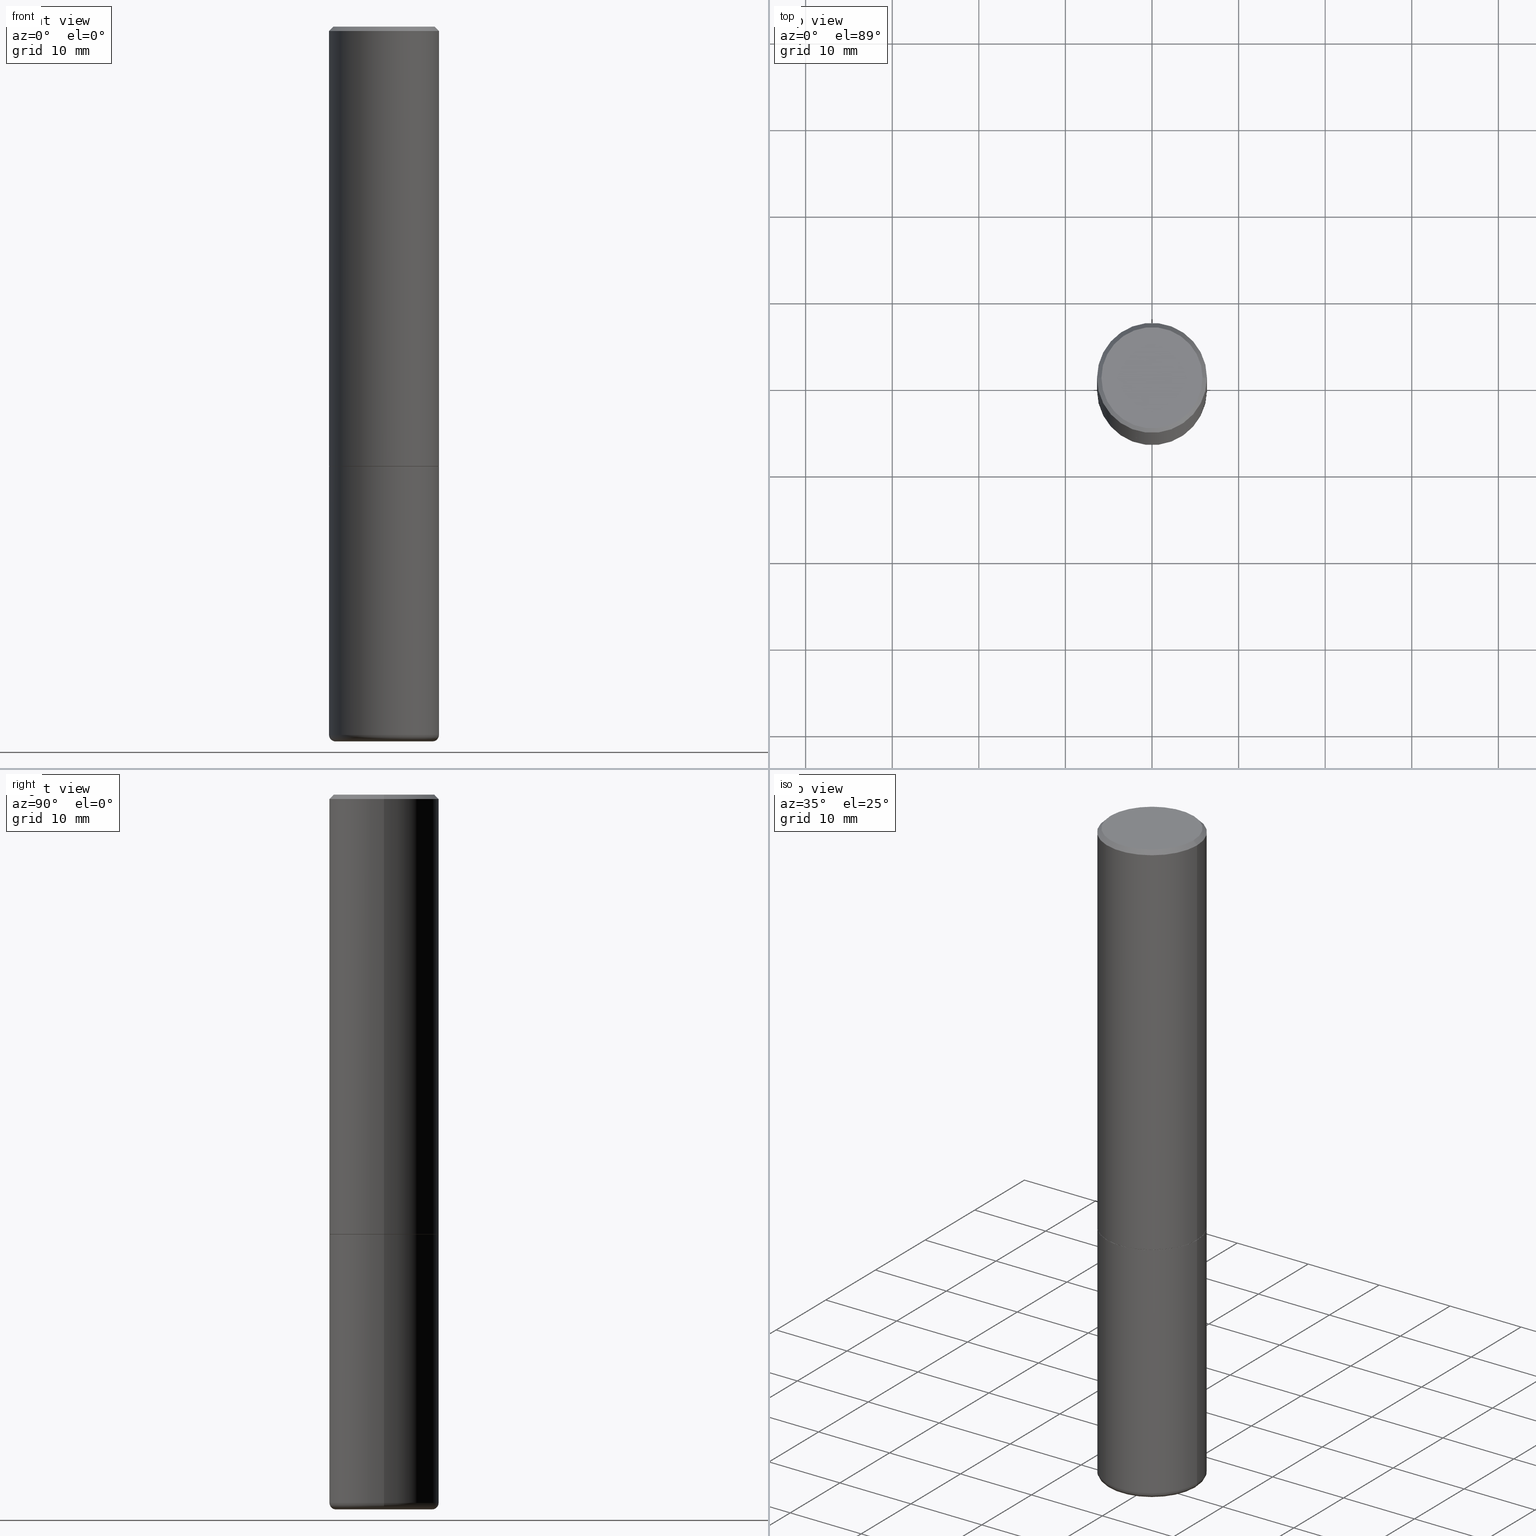
[diagram: canonical four-view strip — front | top / right | iso, engineering-drawing reading convention]
A machine part, canonical four-view strip (front | top / right | iso — engineering-drawing reading convention). The complete STEP part file that produces these views, byte-faithful:
ISO-10303-21;
HEADER;
FILE_DESCRIPTION (( 'STEP AP203' ),
    '1' );
FILE_NAME ('34779.STEP',
    '2022-11-02T20:16:27',
    ( '' ),
    ( '' ),
    'SwSTEP 2.0',
    'SolidWorks 2022',
    '' );
FILE_SCHEMA (( 'CONFIG_CONTROL_DESIGN' ));
ENDSEC;

DATA;
#1 = DIRECTION ( 'NONE',  ( -2.445468806185136597E-29, 3.491481338843145583E-15, 1.000000000000000000 ) ) ;
#2 = ORIENTED_EDGE ( 'NONE', *, *, #148, .T. ) ;
#3 = CARTESIAN_POINT ( 'NONE',  ( -0.2489999999999996660, -5.208412811295422462E-15, -2.000000000000000000 ) ) ;
#4 = DIRECTION ( 'NONE',  ( 0.000000000000000000, 0.000000000000000000, 1.000000000000000000 ) ) ;
#5 = AXIS2_PLACEMENT_3D ( 'NONE', #346, #4, #358 ) ;
#6 = ORIENTED_EDGE ( 'NONE', *, *, #31, .T. ) ;
#7 = VERTEX_POINT ( 'NONE', #160 ) ;
#8 = CARTESIAN_POINT ( 'NONE',  ( 4.890937612370273194E-29, -6.982962677686291165E-15, -2.000000000000000000 ) ) ;
#9 = CARTESIAN_POINT ( 'NONE',  ( 7.929934496680489280E-29, -1.132408133894856808E-14, -3.243025033220710451 ) ) ;
#10 = PRODUCT_RELATED_PRODUCT_CATEGORY ( 'detail', '', ( #156 ) ) ;
#11 = CARTESIAN_POINT ( 'NONE',  ( 0.2197382039350491423, -1.285482785937054132E-14, -3.250000000000000000 ) ) ;
#12 = ORIENTED_EDGE ( 'NONE', *, *, #326, .T. ) ;
#13 = AXIS2_PLACEMENT_3D ( 'NONE', #21, #403, #291 ) ;
#14 = AXIS2_PLACEMENT_3D ( 'NONE', #8, #166, #164 ) ;
#15 = CC_DESIGN_PERSON_AND_ORGANIZATION_ASSIGNMENT ( #400, #60, ( #80 ) ) ;
#16 = DATE_AND_TIME ( #288, #308 ) ;
#17 = DIRECTION ( 'NONE',  ( 2.445468806185136597E-29, -3.491481338843145583E-15, -1.000000000000000000 ) ) ;
#18 = DATE_AND_TIME ( #281, #94 ) ;
#19 = ADVANCED_FACE ( 'NONE', ( #201 ), #317, .F. ) ;
#20 = CARTESIAN_POINT ( 'NONE',  ( -0.2499999999999998612, 1.776356839400249479E-15, -1.229733772563725745E-29 ) ) ;
#21 = CARTESIAN_POINT ( 'NONE',  ( 7.947204554791619182E-29, -1.134650187679537143E-14, -3.249767298070359800 ) ) ;
#22 = AXIS2_PLACEMENT_3D ( 'NONE', #103, #17, #319 ) ;
#23 = CARTESIAN_POINT ( 'NONE',  ( 1.606081415867835940E-15, 0.2299999999999992606, -8.009064516888707148E-16 ) ) ;
#24 = CARTESIAN_POINT ( 'NONE',  ( 4.890937612370273194E-29, -6.982962677686291165E-15, -2.000000000000000000 ) ) ;
#25 = AXIS2_PLACEMENT_3D ( 'NONE', #117, #313, #468 ) ;
#26 = LOCAL_TIME ( 16, 16, 27.00000000000000000, #318 ) ;
#27 = ADVANCED_FACE ( 'NONE', ( #127 ), #51, .F. ) ;
#28 = CARTESIAN_POINT ( 'NONE',  ( 0.2489999999999996660, -8.721720384430167884E-15, -2.000000000000000000 ) ) ;
#29 = LINE ( 'NONE', #142, #459 ) ;
#30 = ORIENTED_EDGE ( 'NONE', *, *, #315, .F. ) ;
#31 = EDGE_CURVE ( 'NONE', #258, #380, #90, .T. ) ;
#32 = PLANE ( 'NONE',  #307 ) ;
#33 = ORIENTED_EDGE ( 'NONE', *, *, #242, .F. ) ;
#34 = AXIS2_PLACEMENT_3D ( 'NONE', #314, #88, #353 ) ;
#35 = VECTOR ( 'NONE', #235, 39.37007874015748854 ) ;
#36 = FACE_OUTER_BOUND ( 'NONE', #240, .T. ) ;
#37 = CARTESIAN_POINT ( 'NONE',  ( 0.000000000000000000, 0.000000000000000000, 0.000000000000000000 ) ) ;
#38 = CC_DESIGN_PERSON_AND_ORGANIZATION_ASSIGNMENT ( #56, #99, ( #405 ) ) ;
#39 = CARTESIAN_POINT ( 'NONE',  ( 0.2499999999999994171, -1.784954126219742244E-15, -0.02000000000000013226 ) ) ;
#40 = VERTEX_POINT ( 'NONE', #391 ) ;
#41 = CYLINDRICAL_SURFACE ( 'NONE', #102, 0.2499999999999998612 ) ;
#42 = AXIS2_PLACEMENT_3D ( 'NONE', #304, #375, #371 ) ;
#43 = EDGE_LOOP ( 'NONE', ( #85, #395, #199, #33 ) ) ;
#44 = DIRECTION ( 'NONE',  ( -0.9993908270190957621, 6.856857904024556470E-15, -0.03489949670250108021 ) ) ;
#45 = VERTEX_POINT ( 'NONE', #9 ) ;
#46 = DIRECTION ( 'NONE',  ( -2.445468806185136597E-29, 3.491481338843145583E-15, 1.000000000000000000 ) ) ;
#47 = ADVANCED_FACE ( 'NONE', ( #165 ), #203, .T. ) ;
#48 = EDGE_LOOP ( 'NONE', ( #457, #79 ) ) ;
#49 = ADVANCED_FACE ( 'NONE', ( #248 ), #382, .F. ) ;
#50 = DATE_AND_TIME ( #247, #26 ) ;
#51 = CONICAL_SURFACE ( 'NONE', #34, 0.1930732039350491758, 1.535889741755009918 ) ;
#52 = DIRECTION ( 'NONE',  ( 7.105427357601001859E-15, 1.000000000000000000, -3.491481338843145583E-15 ) ) ;
#53 = EDGE_CURVE ( 'NONE', #197, #418, #139, .T. ) ;
#54 = CARTESIAN_POINT ( 'NONE',  ( 0.2200000000000002232, -1.277882568851323406E-14, -3.220001142308074993 ) ) ;
#55 = EDGE_CURVE ( 'NONE', #306, #380, #432, .T. ) ;
#56 = PERSON_AND_ORGANIZATION ( #168, #125 ) ;
#57 = CARTESIAN_POINT ( 'NONE',  ( 0.2197382039350491423, -1.288173802818048494E-14, -3.250000000000000000 ) ) ;
#58 = COORDINATED_UNIVERSAL_TIME_OFFSET ( 5, 0, .BEHIND. ) ;
#59 = DIRECTION ( 'NONE',  ( 2.438088387897960049E-29, -3.491481338843145188E-15, -1.000000000000000000 ) ) ;
#60 = PERSON_AND_ORGANIZATION_ROLE ( 'creator' ) ;
#61 = DIRECTION ( 'NONE',  ( 0.9993908270190957621, -6.978169709227541488E-15, -0.03489949670250108021 ) ) ;
#62 = CARTESIAN_POINT ( 'NONE',  ( 7.947204554791619182E-29, -1.134650187679537143E-14, -3.249767298070359800 ) ) ;
#63 = APPROVAL ( #366, 'UNSPECIFIED' ) ;
#64 = DIRECTION ( 'NONE',  ( -0.7071067811865232589, 7.493145998870265808E-15, 0.7071067811865715536 ) ) ;
#65 = EDGE_LOOP ( 'NONE', ( #230, #265, #428, #123 ) ) ;
#66 = CLOSED_SHELL ( 'NONE', ( #422, #268, #47, #419, #399, #329, #279, #119 ) ) ;
#67 = CIRCLE ( 'NONE', #157, 0.2499999999999994171 ) ;
#68 = AXIS2_PLACEMENT_3D ( 'NONE', #37, #274, #122 ) ;
#69 = CARTESIAN_POINT ( 'NONE',  ( 4.890937612370273194E-29, -6.982962677686291165E-15, -2.000000000000000000 ) ) ;
#70 = ORIENTED_EDGE ( 'NONE', *, *, #137, .T. ) ;
#71 = DIRECTION ( 'NONE',  ( -2.445468806185136597E-29, 3.491481338843145583E-15, 1.000000000000000000 ) ) ;
#72 = ORIENTED_EDGE ( 'NONE', *, *, #455, .T. ) ;
#73 = CYLINDRICAL_SURFACE ( 'NONE', #91, 0.2499999999999995282 ) ;
#74 = VERTEX_POINT ( 'NONE', #57 ) ;
#75 = VECTOR ( 'NONE', #321, 39.37007874015748143 ) ;
#76 = CIRCLE ( 'NONE', #14, 0.2499999999999996669 ) ;
#77 = CARTESIAN_POINT ( 'NONE',  ( -0.2489999999999996660, -5.213711265643644864E-15, -2.000000000000000000 ) ) ;
#78 = ORIENTED_EDGE ( 'NONE', *, *, #295, .F. ) ;
#79 = ORIENTED_EDGE ( 'NONE', *, *, #92, .T. ) ;
#80 = PRODUCT_DEFINITION ( 'UNKNOWN', '', #417, #162 ) ;
#81 = LINE ( 'NONE', #387, #475 ) ;
#82 = ORIENTED_EDGE ( 'NONE', *, *, #181, .T. ) ;
#83 = LINE ( 'NONE', #11, #35 ) ;
#84 = VECTOR ( 'NONE', #61, 39.37007874015748143 ) ;
#85 = ORIENTED_EDGE ( 'NONE', *, *, #92, .F. ) ;
#86 =( NAMED_UNIT ( * ) SI_UNIT ( $, .STERADIAN. ) SOLID_ANGLE_UNIT ( ) );
#87 = CARTESIAN_POINT ( 'NONE',  ( -0.2200000000000002232, -9.679379880750033900E-15, -3.220001142308074993 ) ) ;
#88 = DIRECTION ( 'NONE',  ( 2.445468806185136597E-29, -3.491481338843145583E-15, -1.000000000000000000 ) ) ;
#89 = APPROVAL_ROLE ( '' ) ;
#90 = CIRCLE ( 'NONE', #316, 0.02999999999999981501 ) ;
#91 = AXIS2_PLACEMENT_3D ( 'NONE', #224, #411, #379 ) ;
#92 = EDGE_CURVE ( 'NONE', #40, #7, #167, .T. ) ;
#93 = DIRECTION ( 'NONE',  ( 1.000000000000000000, -6.982962677686264344E-15, 0.000000000000000000 ) ) ;
#94 = LOCAL_TIME ( 16, 16, 27.00000000000000000, #469 ) ;
#95 = APPROVAL_ROLE ( '' ) ;
#96 = DIRECTION ( 'NONE',  ( -2.445468806185136597E-29, 3.491481338843145583E-15, 1.000000000000000000 ) ) ;
#97 = APPROVAL_DATE_TIME ( #480, #275 ) ;
#98 = DIRECTION ( 'NONE',  ( -2.445468806185136597E-29, 3.491481338843145583E-15, 1.000000000000000000 ) ) ;
#99 = PERSON_AND_ORGANIZATION_ROLE ( 'classification_officer' ) ;
#100 = DIRECTION ( 'NONE',  ( -2.445468806185136597E-29, 3.491481338843145583E-15, 1.000000000000000000 ) ) ;
#101 = AXIS2_PLACEMENT_3D ( 'NONE', #246, #175, #249 ) ;
#102 = AXIS2_PLACEMENT_3D ( 'NONE', #196, #350, #198 ) ;
#103 = CARTESIAN_POINT ( 'NONE',  ( 7.947773620101693940E-29, -1.134731435124022443E-14, -3.250000000000000000 ) ) ;
#104 = ADVANCED_FACE ( 'NONE', ( #473 ), #334, .F. ) ;
#105 = DIRECTION ( 'NONE',  ( -0.7071067811865479058, 2.468850131082261399E-15, -0.7071067811865470176 ) ) ;
#106 = ORIENTED_EDGE ( 'NONE', *, *, #137, .F. ) ;
#107 = FACE_OUTER_BOUND ( 'NONE', #273, .T. ) ;
#108 = ORIENTED_EDGE ( 'NONE', *, *, #345, .F. ) ;
#109 = TOROIDAL_SURFACE ( 'NONE', #116, 0.2200000000000002232, 0.02999999999999980807 ) ;
#110 = CYLINDRICAL_SURFACE ( 'NONE', #68, 0.2499999999999995282 ) ;
#111 = CARTESIAN_POINT ( 'NONE',  ( 4.890937612370304688E-31, -6.982962677686337215E-17, -0.02000000000000013226 ) ) ;
#112 = ORIENTED_EDGE ( 'NONE', *, *, #485, .F. ) ;
#113 = DIRECTION ( 'NONE',  ( 1.000000000000000000, -6.982962677686264344E-15, 0.000000000000000000 ) ) ;
#114 = EDGE_LOOP ( 'NONE', ( #310, #219 ) ) ;
#115 = AXIS2_PLACEMENT_3D ( 'NONE', #23, #59, #364 ) ;
#116 = AXIS2_PLACEMENT_3D ( 'NONE', #487, #71, #182 ) ;
#117 = CARTESIAN_POINT ( 'NONE',  ( 1.745740669421613023E-15, 0.2499999999999927003, -2.000000000000000888 ) ) ;
#118 = EDGE_CURVE ( 'NONE', #306, #121, #211, .T. ) ;
#119 = ADVANCED_FACE ( 'NONE', ( #406 ), #398, .F. ) ;
#120 = CARTESIAN_POINT ( 'NONE',  ( -1.043851414335219820E-46, 1.490343170380447200E-32, 4.268512490100411279E-18 ) ) ;
#121 = VERTEX_POINT ( 'NONE', #477 ) ;
#122 = DIRECTION ( 'NONE',  ( 1.000000000000000000, -6.982962677686266711E-15, 4.876176775795935232E-29 ) ) ;
#123 = ORIENTED_EDGE ( 'NONE', *, *, #236, .F. ) ;
#124 = CARTESIAN_POINT ( 'NONE',  ( 4.888492143564087591E-29, -6.979471196347447369E-15, -1.998999999999999888 ) ) ;
#125 = ORGANIZATION ( 'UNSPECIFIED', 'UNSPECIFIED', '' ) ;
#126 = ORIENTED_EDGE ( 'NONE', *, *, #431, .T. ) ;
#127 = FACE_OUTER_BOUND ( 'NONE', #239, .T. ) ;
#128 = CARTESIAN_POINT ( 'NONE',  ( 4.890937612370273194E-29, -6.982962677686291165E-15, -2.000000000000000000 ) ) ;
#129 = CALENDAR_DATE ( 2022, 2, 11 ) ;
#130 = CIRCLE ( 'NONE', #389, 0.1930732039350491758 ) ;
#131 = CARTESIAN_POINT ( 'NONE',  ( -0.1930732039350491758, -9.998278899655613929E-15, -3.249767298070359800 ) ) ;
#132 = AXIS2_PLACEMENT_3D ( 'NONE', #120, #392, #354 ) ;
#133 = PERSON_AND_ORGANIZATION ( #168, #125 ) ;
#134 = DIRECTION ( 'NONE',  ( 1.000000000000000000, -6.982962677686246200E-15, 0.000000000000000000 ) ) ;
#135 = DIRECTION ( 'NONE',  ( -6.982962677686266711E-15, -1.000000000000000000, 3.491481338843145583E-15 ) ) ;
#136 = PERSON_AND_ORGANIZATION_ROLE ( 'design_owner' ) ;
#137 = EDGE_CURVE ( 'NONE', #74, #306, #229, .T. ) ;
#138 = DIRECTION ( 'NONE',  ( 1.000000000000000000, -6.982962677686266711E-15, 0.000000000000000000 ) ) ;
#139 = CIRCLE ( 'NONE', #234, 0.1930732039350491758 ) ;
#140 = AXIS2_PLACEMENT_3D ( 'NONE', #425, #344, #266 ) ;
#141 = CONICAL_SURFACE ( 'NONE', #263, 0.2489999999999996660, 0.7853981633974141952 ) ;
#142 = CARTESIAN_POINT ( 'NONE',  ( -0.2499999999999994171, 1.675911042644699238E-15, -0.02000000000000013226 ) ) ;
#143 = CARTESIAN_POINT ( 'NONE',  ( 7.874412349394905166E-29, -1.124257389942225570E-14, -3.220001142308074993 ) ) ;
#144 = EDGE_LOOP ( 'NONE', ( #298, #6, #454, #106 ) ) ;
#145 = CC_DESIGN_PERSON_AND_ORGANIZATION_ASSIGNMENT ( #472, #478, ( #417 ) ) ;
#146 = DIRECTION ( 'NONE',  ( -2.445468806185136597E-29, 3.491481338843145583E-15, 1.000000000000000000 ) ) ;
#147 = AXIS2_PLACEMENT_3D ( 'NONE', #171, #213, #436 ) ;
#148 = EDGE_CURVE ( 'NONE', #45, #418, #251, .T. ) ;
#149 = CIRCLE ( 'NONE', #482, 0.2499999999999996669 ) ;
#150 = DIRECTION ( 'NONE',  ( 1.000000000000000000, -6.982962677686269077E-15, 0.000000000000000000 ) ) ;
#151 = ORIENTED_EDGE ( 'NONE', *, *, #412, .F. ) ;
#152 = CARTESIAN_POINT ( 'NONE',  ( 7.947773620101693940E-29, -1.134731435124022443E-14, -3.250000000000000000 ) ) ;
#153 = ADVANCED_FACE ( 'NONE', ( #369 ), #209, .T. ) ;
#154 = LINE ( 'NONE', #39, #466 ) ;
#155 = ORIENTED_EDGE ( 'NONE', *, *, #372, .F. ) ;
#156 = PRODUCT ( '34779', '34779', '', ( #363 ) ) ;
#157 = AXIS2_PLACEMENT_3D ( 'NONE', #111, #226, #293 ) ;
#158 = VECTOR ( 'NONE', #420, 39.37007874015748143 ) ;
#159 =( LENGTH_UNIT ( ) NAMED_UNIT ( * ) SI_UNIT ( $, .METRE. ) );
#160 = CARTESIAN_POINT ( 'NONE',  ( -0.2299999999999992606, 1.640996229256267786E-15, 4.268512490089056766E-18 ) ) ;
#161 = LENGTH_MEASURE_WITH_UNIT ( LENGTH_MEASURE( 0.02539999999999999897 ), #159 );
#162 = DESIGN_CONTEXT ( 'detailed design', #445, 'design' ) ;
#163 = ORIENTED_EDGE ( 'NONE', *, *, #192, .T. ) ;
#164 = DIRECTION ( 'NONE',  ( 1.000000000000000000, -6.982962677686268288E-15, 0.000000000000000000 ) ) ;
#165 = FACE_OUTER_BOUND ( 'NONE', #43, .T. ) ;
#166 = DIRECTION ( 'NONE',  ( -2.445468806185136597E-29, 3.491481338843145583E-15, 1.000000000000000000 ) ) ;
#167 = CIRCLE ( 'NONE', #440, 0.2299999999999992606 ) ;
#168 = PERSON ( 'UNSPECIFIED', 'UNSPECIFIED', 'UNSPECIFIED', ('UNSPECIFIED'), ('UNSPECIFIED'), ('UNSPECIFIED') ) ;
#169 = ORIENTED_EDGE ( 'NONE', *, *, #448, .F. ) ;
#170 = SHAPE_DEFINITION_REPRESENTATION ( #489, #241 ) ;
#171 = CARTESIAN_POINT ( 'NONE',  ( 0.000000000000000000, 0.000000000000000000, 0.000000000000000000 ) ) ;
#172 = CC_DESIGN_PERSON_AND_ORGANIZATION_ASSIGNMENT ( #284, #136, ( #156 ) ) ;
#173 = CARTESIAN_POINT ( 'NONE',  ( -1.043851414335219820E-46, 1.490343170380447200E-32, 4.268512490100411279E-18 ) ) ;
#174 = VECTOR ( 'NONE', #64, 39.37007874015748854 ) ;
#175 = DIRECTION ( 'NONE',  ( -2.445468806185136597E-29, 3.491481338843145583E-15, 1.000000000000000000 ) ) ;
#176 = DIRECTION ( 'NONE',  ( -1.000000000000000000, 6.982962677686266711E-15, 0.000000000000000000 ) ) ;
#177 = DIRECTION ( 'NONE',  ( -2.445468806185136597E-29, 3.491481338843145583E-15, 1.000000000000000000 ) ) ;
#178 = DIRECTION ( 'NONE',  ( 1.000000000000000000, -6.982962677686265133E-15, 0.000000000000000000 ) ) ;
#179 = AXIS2_PLACEMENT_3D ( 'NONE', #434, #96, #185 ) ;
#180 =( GEOMETRIC_REPRESENTATION_CONTEXT ( 3 ) GLOBAL_UNCERTAINTY_ASSIGNED_CONTEXT ( ( #394 ) ) GLOBAL_UNIT_ASSIGNED_CONTEXT ( ( #312, #272, #86 ) ) REPRESENTATION_CONTEXT ( 'NONE', 'WORKASPACE' ) );
#181 = EDGE_CURVE ( 'NONE', #339, #421, #262, .T. ) ;
#182 = DIRECTION ( 'NONE',  ( 1.000000000000000000, -6.982962677686269866E-15, 4.883557194083114022E-29 ) ) ;
#183 = ORIENTED_EDGE ( 'NONE', *, *, #31, .F. ) ;
#184 = ORIENTED_EDGE ( 'NONE', *, *, #228, .T. ) ;
#185 = DIRECTION ( 'NONE',  ( 1.000000000000000000, -6.982962677686268288E-15, 0.000000000000000000 ) ) ;
#186 = CIRCLE ( 'NONE', #292, 0.2499999999999996669 ) ;
#187 = CARTESIAN_POINT ( 'NONE',  ( 4.890937612370273194E-29, -6.982962677686291165E-15, -2.000000000000000000 ) ) ;
#188 = EDGE_LOOP ( 'NONE', ( #444, #206, #426, #233 ) ) ;
#189 = EDGE_CURVE ( 'NONE', #380, #305, #362, .T. ) ;
#190 = LINE ( 'NONE', #232, #158 ) ;
#191 = MANIFOLD_SOLID_BREP ( 'Body-Move/Copy2[1]', #458 ) ;
#192 = EDGE_CURVE ( 'NONE', #339, #465, #471, .T. ) ;
#193 = DIRECTION ( 'NONE',  ( -1.000000000000000000, 7.105427357600969515E-15, 0.000000000000000000 ) ) ;
#194 = CIRCLE ( 'NONE', #256, 0.2500000000000000555 ) ;
#195 = VECTOR ( 'NONE', #413, 39.37007874015748854 ) ;
#196 = CARTESIAN_POINT ( 'NONE',  ( 0.000000000000000000, 0.000000000000000000, 0.000000000000000000 ) ) ;
#197 = VERTEX_POINT ( 'NONE', #131 ) ;
#198 = DIRECTION ( 'NONE',  ( 1.000000000000000000, -6.982962677686266711E-15, 4.876176775795935793E-29 ) ) ;
#199 = ORIENTED_EDGE ( 'NONE', *, *, #295, .T. ) ;
#200 = CARTESIAN_POINT ( 'NONE',  ( 0.1930732039350491758, -1.267108020581511100E-14, -3.249767298070359800 ) ) ;
#201 = FACE_OUTER_BOUND ( 'NONE', #424, .T. ) ;
#202 = MANIFOLD_SOLID_BREP ( 'Body-Move/Copy2[2]', #66 ) ;
#203 = CONICAL_SURFACE ( 'NONE', #404, 0.2499999999999994171, 0.7853981633974489451 ) ;
#204 = APPROVAL_STATUS ( 'not_yet_approved' ) ;
#205 = AXIS2_PLACEMENT_3D ( 'NONE', #260, #451, #178 ) ;
#206 = ORIENTED_EDGE ( 'NONE', *, *, #443, .F. ) ;
#207 = EDGE_CURVE ( 'NONE', #225, #388, #289, .T. ) ;
#208 = DATE_TIME_ROLE ( 'classification_date' ) ;
#209 = CYLINDRICAL_SURFACE ( 'NONE', #147, 0.2499999999999998612 ) ;
#210 = CALENDAR_DATE ( 2022, 2, 11 ) ;
#211 = LINE ( 'NONE', #215, #490 ) ;
#212 = AXIS2_PLACEMENT_3D ( 'NONE', #331, #325, #216 ) ;
#213 = DIRECTION ( 'NONE',  ( -2.445468806185136597E-29, 3.491481338843145583E-15, 1.000000000000000000 ) ) ;
#214 = CONICAL_SURFACE ( 'NONE', #140, 0.2499999999999994171, 0.7853981633974489451 ) ;
#215 = CARTESIAN_POINT ( 'NONE',  ( 0.2499999999999998612, -1.745740669421565692E-15, 1.219044193948983248E-29 ) ) ;
#216 = DIRECTION ( 'NONE',  ( -1.000000000000000000, 6.982962677686265133E-15, 0.000000000000000000 ) ) ;
#217 = LINE ( 'NONE', #222, #218 ) ;
#218 = VECTOR ( 'NONE', #338, 39.37007874015748143 ) ;
#219 = ORIENTED_EDGE ( 'NONE', *, *, #228, .F. ) ;
#220 = CC_DESIGN_APPROVAL ( #361, ( #405 ) ) ;
#221 = ADVANCED_FACE ( 'NONE', ( #439 ), #356, .F. ) ;
#222 = CARTESIAN_POINT ( 'NONE',  ( 0.2499999999999995282, -1.745740669421563325E-15, 1.219044193948981566E-29 ) ) ;
#223 = EDGE_LOOP ( 'NONE', ( #151, #2, #447 ) ) ;
#224 = CARTESIAN_POINT ( 'NONE',  ( 0.000000000000000000, 0.000000000000000000, 0.000000000000000000 ) ) ;
#225 = VERTEX_POINT ( 'NONE', #283 ) ;
#226 = DIRECTION ( 'NONE',  ( -2.445468806185136597E-29, 3.491481338843145583E-15, 1.000000000000000000 ) ) ;
#227 = ORIENTED_EDGE ( 'NONE', *, *, #384, .F. ) ;
#228 = EDGE_CURVE ( 'NONE', #421, #339, #323, .T. ) ;
#229 = CIRCLE ( 'NONE', #373, 0.02999999999999981501 ) ;
#230 = ORIENTED_EDGE ( 'NONE', *, *, #189, .F. ) ;
#231 = ORIENTED_EDGE ( 'NONE', *, *, #207, .F. ) ;
#232 = CARTESIAN_POINT ( 'NONE',  ( -0.2499999999999995282, 1.776356839400247112E-15, -1.229733772563724063E-29 ) ) ;
#233 = ORIENTED_EDGE ( 'NONE', *, *, #207, .T. ) ;
#234 = AXIS2_PLACEMENT_3D ( 'NONE', #62, #100, #138 ) ;
#235 = DIRECTION ( 'NONE',  ( 0.9999619230641714207, -6.890705306874825328E-15, -0.008726535498369011531 ) ) ;
#236 = EDGE_CURVE ( 'NONE', #305, #121, #396, .T. ) ;
#237 = ORIENTED_EDGE ( 'NONE', *, *, #236, .T. ) ;
#238 = FACE_OUTER_BOUND ( 'NONE', #65, .T. ) ;
#239 = EDGE_LOOP ( 'NONE', ( #296, #378, #347 ) ) ;
#240 = EDGE_LOOP ( 'NONE', ( #30, #184, #163, #337 ) ) ;
#241 = ADVANCED_BREP_SHAPE_REPRESENTATION ( '34779', ( #191, #202, #5 ), #180 ) ;
#242 = EDGE_CURVE ( 'NONE', #7, #225, #29, .T. ) ;
#243 = LOCAL_TIME ( 16, 16, 27.00000000000000000, #435 ) ;
#244 = DIRECTION ( 'NONE',  ( 2.445468806185136597E-29, -3.491481338843145583E-15, -1.000000000000000000 ) ) ;
#245 = PERSON_AND_ORGANIZATION ( #168, #125 ) ;
#246 = CARTESIAN_POINT ( 'NONE',  ( 7.874412349394905166E-29, -1.124257389942225570E-14, -3.220001142308074993 ) ) ;
#247 = CALENDAR_DATE ( 2022, 2, 11 ) ;
#248 = FACE_OUTER_BOUND ( 'NONE', #464, .T. ) ;
#249 = DIRECTION ( 'NONE',  ( 1.000000000000000000, -6.982962677686269077E-15, 0.000000000000000000 ) ) ;
#250 = CIRCLE ( 'NONE', #132, 0.2299999999999992606 ) ;
#251 = LINE ( 'NONE', #407, #84 ) ;
#252 = DIRECTION ( 'NONE',  ( 1.000000000000000000, -6.982962677686265922E-15, 4.876176775795935793E-29 ) ) ;
#253 = ORIENTED_EDGE ( 'NONE', *, *, #254, .T. ) ;
#254 = EDGE_CURVE ( 'NONE', #418, #197, #130, .T. ) ;
#255 = FACE_OUTER_BOUND ( 'NONE', #144, .T. ) ;
#256 = AXIS2_PLACEMENT_3D ( 'NONE', #143, #1, #150 ) ;
#257 = CARTESIAN_POINT ( 'NONE',  ( -0.2197382039350491423, -9.812890674299962335E-15, -3.250000000000000000 ) ) ;
#258 = VERTEX_POINT ( 'NONE', #415 ) ;
#259 = CARTESIAN_POINT ( 'NONE',  ( -0.2499999999999996669, -7.336411449154023361E-15, -2.000000000000000000 ) ) ;
#260 = CARTESIAN_POINT ( 'NONE',  ( 7.947773620101693940E-29, -1.134731435124022443E-14, -3.250000000000000000 ) ) ;
#261 = ORIENTED_EDGE ( 'NONE', *, *, #315, .T. ) ;
#262 = CIRCLE ( 'NONE', #290, 0.2489999999999996660 ) ;
#263 = AXIS2_PLACEMENT_3D ( 'NONE', #463, #46, #385 ) ;
#264 = APPLICATION_PROTOCOL_DEFINITION ( 'international standard', 'config_control_design', 1994, #437 ) ;
#265 = ORIENTED_EDGE ( 'NONE', *, *, #332, .T. ) ;
#266 = DIRECTION ( 'NONE',  ( -1.000000000000000000, 6.982962677686266711E-15, 0.000000000000000000 ) ) ;
#267 = ORIENTED_EDGE ( 'NONE', *, *, #372, .T. ) ;
#268 = ADVANCED_FACE ( 'NONE', ( #453 ), #73, .T. ) ;
#269 = DIRECTION ( 'NONE',  ( -2.445468806185136597E-29, 3.491481338843145583E-15, 1.000000000000000000 ) ) ;
#270 = ORIENTED_EDGE ( 'NONE', *, *, #485, .T. ) ;
#271 = CC_DESIGN_SECURITY_CLASSIFICATION ( #405, ( #417 ) ) ;
#272 =( NAMED_UNIT ( * ) PLANE_ANGLE_UNIT ( ) SI_UNIT ( $, .RADIAN. ) );
#273 = EDGE_LOOP ( 'NONE', ( #486, #126, #12, #231 ) ) ;
#274 = DIRECTION ( 'NONE',  ( -2.445468806185136597E-29, 3.491481338843145583E-15, 1.000000000000000000 ) ) ;
#275 = APPROVAL ( #324, 'UNSPECIFIED' ) ;
#276 = EDGE_LOOP ( 'NONE', ( #393, #355, #227, #386 ) ) ;
#277 = PERSON_AND_ORGANIZATION ( #168, #125 ) ;
#278 = DIRECTION ( 'NONE',  ( -2.445468806185136597E-29, 3.491481338843145583E-15, 1.000000000000000000 ) ) ;
#279 = ADVANCED_FACE ( 'NONE', ( #302 ), #32, .F. ) ;
#280 = AXIS2_PLACEMENT_3D ( 'NONE', #128, #430, #93 ) ;
#281 = CALENDAR_DATE ( 2022, 2, 11 ) ;
#282 = CC_DESIGN_APPROVAL ( #63, ( #417 ) ) ;
#283 = CARTESIAN_POINT ( 'NONE',  ( -0.2499999999999994171, 1.675911042644699238E-15, -0.02000000000000013226 ) ) ;
#284 = PERSON_AND_ORGANIZATION ( #168, #125 ) ;
#285 = DIRECTION ( 'NONE',  ( 1.000000000000000000, -6.982962677686266711E-15, 4.876225828469324576E-29 ) ) ;
#286 = APPROVAL_ROLE ( '' ) ;
#287 = DIRECTION ( 'NONE',  ( 1.000000000000000000, -6.982962677686266711E-15, 0.000000000000000000 ) ) ;
#288 = CALENDAR_DATE ( 2022, 2, 11 ) ;
#289 = CIRCLE ( 'NONE', #348, 0.2499999999999994171 ) ;
#290 = AXIS2_PLACEMENT_3D ( 'NONE', #24, #177, #441 ) ;
#291 = DIRECTION ( 'NONE',  ( -1.000000000000000000, 6.982962677686266711E-15, 0.000000000000000000 ) ) ;
#292 = AXIS2_PLACEMENT_3D ( 'NONE', #484, #377, #113 ) ;
#293 = DIRECTION ( 'NONE',  ( 1.000000000000000000, -6.982962677686266711E-15, 0.000000000000000000 ) ) ;
#294 = CC_DESIGN_DATE_AND_TIME_ASSIGNMENT ( #50, #476, ( #80 ) ) ;
#295 = EDGE_CURVE ( 'NONE', #388, #225, #67, .T. ) ;
#296 = ORIENTED_EDGE ( 'NONE', *, *, #148, .F. ) ;
#297 = CARTESIAN_POINT ( 'NONE',  ( 0.2499999999999994171, -1.784954126219742244E-15, -0.02000000000000013226 ) ) ;
#298 = ORIENTED_EDGE ( 'NONE', *, *, #345, .T. ) ;
#299 = CARTESIAN_POINT ( 'NONE',  ( -0.2499999999999996114, -1.748293572161906447E-15, -1.998999999999999888 ) ) ;
#300 = EDGE_LOOP ( 'NONE', ( #82, #261, #155, #460 ) ) ;
#301 = APPROVAL_PERSON_ORGANIZATION ( #133, #361, #95 ) ;
#302 = FACE_OUTER_BOUND ( 'NONE', #114, .T. ) ;
#303 = EDGE_LOOP ( 'NONE', ( #183, #376, #70, #351 ) ) ;
#304 = CARTESIAN_POINT ( 'NONE',  ( 7.874412349394905166E-29, -1.124257389942225570E-14, -3.220001142308074993 ) ) ;
#305 = VERTEX_POINT ( 'NONE', #259 ) ;
#306 = VERTEX_POINT ( 'NONE', #381 ) ;
#307 = AXIS2_PLACEMENT_3D ( 'NONE', #69, #491, #252 ) ;
#308 = LOCAL_TIME ( 16, 16, 27.00000000000000000, #327 ) ;
#309 = DIRECTION ( 'NONE',  ( 1.000000000000000000, -6.982962677686264344E-15, 0.000000000000000000 ) ) ;
#310 = ORIENTED_EDGE ( 'NONE', *, *, #181, .F. ) ;
#311 = CC_DESIGN_PERSON_AND_ORGANIZATION_ASSIGNMENT ( #245, #360, ( #417 ) ) ;
#312 =( CONVERSION_BASED_UNIT ( 'INCH', #161 ) LENGTH_UNIT ( ) NAMED_UNIT ( #322 ) );
#313 = DIRECTION ( 'NONE',  ( 2.438088387897960049E-29, -3.491481338843145188E-15, -1.000000000000000000 ) ) ;
#314 = CARTESIAN_POINT ( 'NONE',  ( 7.947204554791619182E-29, -1.134650187679537143E-14, -3.249767298070359800 ) ) ;
#315 = EDGE_CURVE ( 'NONE', #421, #343, #408, .T. ) ;
#316 = AXIS2_PLACEMENT_3D ( 'NONE', #87, #52, #193 ) ;
#317 = PLANE ( 'NONE',  #25 ) ;
#318 = COORDINATED_UNIVERSAL_TIME_OFFSET ( 5, 0, .BEHIND. ) ;
#319 = DIRECTION ( 'NONE',  ( -1.000000000000000000, 6.982962677686265133E-15, 0.000000000000000000 ) ) ;
#320 = DATE_AND_TIME ( #210, #374 ) ;
#321 = DIRECTION ( 'NONE',  ( -2.445468806185136877E-29, 3.491481338843145188E-15, 1.000000000000000000 ) ) ;
#322 = DIMENSIONAL_EXPONENTS ( 1.000000000000000000, 0.000000000000000000, 0.000000000000000000, 0.000000000000000000, 0.000000000000000000, 0.000000000000000000, 0.000000000000000000 ) ;
#323 = CIRCLE ( 'NONE', #280, 0.2489999999999996660 ) ;
#324 = APPROVAL_STATUS ( 'not_yet_approved' ) ;
#325 = DIRECTION ( 'NONE',  ( 2.445468806185136597E-29, -3.491481338843145583E-15, -1.000000000000000000 ) ) ;
#326 = EDGE_CURVE ( 'NONE', #465, #388, #217, .T. ) ;
#327 = COORDINATED_UNIVERSAL_TIME_OFFSET ( 5, 0, .BEHIND. ) ;
#328 = DIRECTION ( 'NONE',  ( 0.7071067811865232589, -2.468850131082003836E-15, 0.7071067811865715536 ) ) ;
#329 = ADVANCED_FACE ( 'NONE', ( #36 ), #427, .T. ) ;
#330 = APPROVAL_DATE_TIME ( #320, #361 ) ;
#331 = CARTESIAN_POINT ( 'NONE',  ( 7.947773620101693940E-29, -1.134731435124022443E-14, -3.250000000000000000 ) ) ;
#332 = EDGE_CURVE ( 'NONE', #380, #306, #194, .T. ) ;
#333 = ADVANCED_FACE ( 'NONE', ( #255 ), #341, .T. ) ;
#334 = CONICAL_SURFACE ( 'NONE', #13, 0.1930732039350491758, 1.535889741755009918 ) ;
#335 = DIRECTION ( 'NONE',  ( -2.445468806185136597E-29, 3.491481338843145583E-15, 1.000000000000000000 ) ) ;
#336 = DIRECTION ( 'NONE',  ( 1.000000000000000000, -6.982962677686265133E-15, 0.000000000000000000 ) ) ;
#337 = ORIENTED_EDGE ( 'NONE', *, *, #431, .F. ) ;
#338 = DIRECTION ( 'NONE',  ( -2.445468806185136877E-29, 3.491481338843145188E-15, 1.000000000000000000 ) ) ;
#339 = VERTEX_POINT ( 'NONE', #28 ) ;
#340 = CARTESIAN_POINT ( 'NONE',  ( 7.947204554791619182E-29, -1.134650187679537143E-14, -3.249767298070359800 ) ) ;
#341 = TOROIDAL_SURFACE ( 'NONE', #42, 0.2200000000000002232, 0.02999999999999980807 ) ;
#342 = DIRECTION ( 'NONE',  ( 1.000000000000000000, -6.982962677686264344E-15, 0.000000000000000000 ) ) ;
#343 = VERTEX_POINT ( 'NONE', #299 ) ;
#344 = DIRECTION ( 'NONE',  ( 2.445468806185136597E-29, -3.491481338843145583E-15, -1.000000000000000000 ) ) ;
#345 = EDGE_CURVE ( 'NONE', #74, #258, #450, .T. ) ;
#346 = CARTESIAN_POINT ( 'NONE',  ( 0.000000000000000000, 0.000000000000000000, 0.000000000000000000 ) ) ;
#347 = ORIENTED_EDGE ( 'NONE', *, *, #254, .F. ) ;
#348 = AXIS2_PLACEMENT_3D ( 'NONE', #479, #278, #287 ) ;
#349 = CC_DESIGN_APPROVAL ( #275, ( #80 ) ) ;
#350 = DIRECTION ( 'NONE',  ( -2.445468806185136597E-29, 3.491481338843145583E-15, 1.000000000000000000 ) ) ;
#351 = ORIENTED_EDGE ( 'NONE', *, *, #332, .F. ) ;
#352 = FACE_OUTER_BOUND ( 'NONE', #188, .T. ) ;
#353 = DIRECTION ( 'NONE',  ( -1.000000000000000000, 6.982962677686266711E-15, 0.000000000000000000 ) ) ;
#354 = DIRECTION ( 'NONE',  ( 1.000000000000000000, -6.982962677686266711E-15, 4.876225828469324576E-29 ) ) ;
#355 = ORIENTED_EDGE ( 'NONE', *, *, #448, .T. ) ;
#356 = CONICAL_SURFACE ( 'NONE', #22, 0.2197382039350491423, 1.562069680534929894 ) ;
#357 = APPROVAL_PERSON_ORGANIZATION ( #402, #63, #89 ) ;
#358 = DIRECTION ( 'NONE',  ( 1.000000000000000000, 0.000000000000000000, 0.000000000000000000 ) ) ;
#359 = EDGE_LOOP ( 'NONE', ( #267, #72, #78, #452 ) ) ;
#360 = PERSON_AND_ORGANIZATION_ROLE ( 'creator' ) ;
#361 = APPROVAL ( #204, 'UNSPECIFIED' ) ;
#362 = LINE ( 'NONE', #20, #75 ) ;
#363 = MECHANICAL_CONTEXT ( 'NONE', #437, 'mechanical' ) ;
#364 = DIRECTION ( 'NONE',  ( -1.000000000000000000, 6.982962677686265922E-15, -4.876176775795935793E-29 ) ) ;
#365 = EDGE_CURVE ( 'NONE', #197, #258, #483, .T. ) ;
#366 = APPROVAL_STATUS ( 'not_yet_approved' ) ;
#367 = CIRCLE ( 'NONE', #205, 0.2197382039350491423 ) ;
#368 = CARTESIAN_POINT ( 'NONE',  ( 0.2489999999999996660, -8.721720384430167884E-15, -2.000000000000000000 ) ) ;
#369 = FACE_OUTER_BOUND ( 'NONE', #462, .T. ) ;
#370 = ADVANCED_FACE ( 'NONE', ( #456 ), #109, .T. ) ;
#371 = DIRECTION ( 'NONE',  ( 1.000000000000000000, -6.982962677686269866E-15, 4.883557194083114022E-29 ) ) ;
#372 = EDGE_CURVE ( 'NONE', #465, #343, #186, .T. ) ;
#373 = AXIS2_PLACEMENT_3D ( 'NONE', #54, #135, #134 ) ;
#374 = LOCAL_TIME ( 16, 16, 27.00000000000000000, #58 ) ;
#375 = DIRECTION ( 'NONE',  ( -2.445468806185136597E-29, 3.491481338843145583E-15, 1.000000000000000000 ) ) ;
#376 = ORIENTED_EDGE ( 'NONE', *, *, #384, .T. ) ;
#377 = DIRECTION ( 'NONE',  ( -2.445468806185136597E-29, 3.491481338843145583E-15, 1.000000000000000000 ) ) ;
#378 = ORIENTED_EDGE ( 'NONE', *, *, #412, .T. ) ;
#379 = DIRECTION ( 'NONE',  ( 1.000000000000000000, -6.982962677686266711E-15, 4.876176775795935232E-29 ) ) ;
#380 = VERTEX_POINT ( 'NONE', #416 ) ;
#381 = CARTESIAN_POINT ( 'NONE',  ( 0.2500000000000000555, -1.298831456884382237E-14, -3.220001142308074993 ) ) ;
#382 = CONICAL_SURFACE ( 'NONE', #212, 0.2197382039350491423, 1.562069680534929894 ) ;
#383 = APPROVAL_PERSON_ORGANIZATION ( #277, #275, #286 ) ;
#384 = EDGE_CURVE ( 'NONE', #258, #74, #367, .T. ) ;
#385 = DIRECTION ( 'NONE',  ( 1.000000000000000000, -6.982962677686264344E-15, 0.000000000000000000 ) ) ;
#386 = ORIENTED_EDGE ( 'NONE', *, *, #365, .F. ) ;
#387 = CARTESIAN_POINT ( 'NONE',  ( -0.1930732039350491758, -9.998278899655613929E-15, -3.249767298070359800 ) ) ;
#388 = VERTEX_POINT ( 'NONE', #297 ) ;
#389 = AXIS2_PLACEMENT_3D ( 'NONE', #340, #146, #442 ) ;
#390 = CARTESIAN_POINT ( 'NONE',  ( 0.2499999999999996669, -8.725211865769010891E-15, -1.998999999999999888 ) ) ;
#391 = CARTESIAN_POINT ( 'NONE',  ( 0.2299999999999992606, -1.681434332853594870E-15, 4.268512490111905999E-18 ) ) ;
#392 = DIRECTION ( 'NONE',  ( -2.445468806185136597E-29, 3.491481338843145583E-15, 1.000000000000000000 ) ) ;
#393 = ORIENTED_EDGE ( 'NONE', *, *, #53, .T. ) ;
#394 = UNCERTAINTY_MEASURE_WITH_UNIT (LENGTH_MEASURE( 1.000000000000000082E-05 ), #312, 'distance_accuracy_value', 'NONE');
#395 = ORIENTED_EDGE ( 'NONE', *, *, #492, .T. ) ;
#396 = CIRCLE ( 'NONE', #179, 0.2499999999999996669 ) ;
#397 = APPROVAL_DATE_TIME ( #16, #63 ) ;
#398 = PLANE ( 'NONE',  #115 ) ;
#399 = ADVANCED_FACE ( 'NONE', ( #107 ), #110, .T. ) ;
#400 = PERSON_AND_ORGANIZATION ( #168, #125 ) ;
#401 = CARTESIAN_POINT ( 'NONE',  ( 4.890937612370304688E-31, -6.982962677686337215E-17, -0.02000000000000013226 ) ) ;
#402 = PERSON_AND_ORGANIZATION ( #168, #125 ) ;
#403 = DIRECTION ( 'NONE',  ( 2.445468806185136597E-29, -3.491481338843145583E-15, -1.000000000000000000 ) ) ;
#404 = AXIS2_PLACEMENT_3D ( 'NONE', #401, #244, #176 ) ;
#405 = SECURITY_CLASSIFICATION ( '', '', #438 ) ;
#406 = FACE_OUTER_BOUND ( 'NONE', #48, .T. ) ;
#407 = CARTESIAN_POINT ( 'NONE',  ( 0.1930732039350491758, -1.267108020581511100E-14, -3.249767298070359800 ) ) ;
#408 = LINE ( 'NONE', #77, #174 ) ;
#409 = ORIENTED_EDGE ( 'NONE', *, *, #189, .T. ) ;
#410 = AXIS2_PLACEMENT_3D ( 'NONE', #152, #335, #336 ) ;
#411 = DIRECTION ( 'NONE',  ( -2.445468806185136597E-29, 3.491481338843145583E-15, 1.000000000000000000 ) ) ;
#412 = EDGE_CURVE ( 'NONE', #45, #197, #81, .T. ) ;
#413 = DIRECTION ( 'NONE',  ( -0.9999619230641714207, 6.952228252019186602E-15, -0.008726535498369011531 ) ) ;
#414 = ORIENTED_EDGE ( 'NONE', *, *, #365, .T. ) ;
#415 = CARTESIAN_POINT ( 'NONE',  ( -0.2197382039350491423, -9.626098782756011188E-15, -3.250000000000000000 ) ) ;
#416 = CARTESIAN_POINT ( 'NONE',  ( -0.2500000000000000555, -7.336411449154020205E-15, -3.220001142308074993 ) ) ;
#417 = PRODUCT_DEFINITION_FORMATION_WITH_SPECIFIED_SOURCE ( 'ANY', '', #156, .NOT_KNOWN. ) ;
#418 = VERTEX_POINT ( 'NONE', #200 ) ;
#419 = ADVANCED_FACE ( 'NONE', ( #352 ), #214, .T. ) ;
#420 = DIRECTION ( 'NONE',  ( -2.445468806185136877E-29, 3.491481338843145188E-15, 1.000000000000000000 ) ) ;
#421 = VERTEX_POINT ( 'NONE', #3 ) ;
#422 = ADVANCED_FACE ( 'NONE', ( #423 ), #141, .T. ) ;
#423 = FACE_OUTER_BOUND ( 'NONE', #300, .T. ) ;
#424 = EDGE_LOOP ( 'NONE', ( #270, #237 ) ) ;
#425 = CARTESIAN_POINT ( 'NONE',  ( 4.890937612370304688E-31, -6.982962677686337215E-17, -0.02000000000000013226 ) ) ;
#426 = ORIENTED_EDGE ( 'NONE', *, *, #242, .T. ) ;
#427 = CONICAL_SURFACE ( 'NONE', #474, 0.2489999999999996660, 0.7853981633974141952 ) ;
#428 = ORIENTED_EDGE ( 'NONE', *, *, #118, .T. ) ;
#429 = ORIENTED_EDGE ( 'NONE', *, *, #55, .T. ) ;
#430 = DIRECTION ( 'NONE',  ( -2.445468806185136597E-29, 3.491481338843145583E-15, 1.000000000000000000 ) ) ;
#431 = EDGE_CURVE ( 'NONE', #343, #465, #149, .T. ) ;
#432 = CIRCLE ( 'NONE', #101, 0.2500000000000000555 ) ;
#433 = APPLICATION_PROTOCOL_DEFINITION ( 'international standard', 'config_control_design', 1994, #445 ) ;
#434 = CARTESIAN_POINT ( 'NONE',  ( 4.890937612370273194E-29, -6.982962677686291165E-15, -2.000000000000000000 ) ) ;
#435 = COORDINATED_UNIVERSAL_TIME_OFFSET ( 5, 0, .BEHIND. ) ;
#436 = DIRECTION ( 'NONE',  ( 1.000000000000000000, -6.982962677686266711E-15, 4.876176775795935793E-29 ) ) ;
#437 = APPLICATION_CONTEXT ( 'configuration controlled 3d designs of mechanical parts and assemblies' ) ;
#438 = SECURITY_CLASSIFICATION_LEVEL ( 'unclassified' ) ;
#439 = FACE_OUTER_BOUND ( 'NONE', #276, .T. ) ;
#440 = AXIS2_PLACEMENT_3D ( 'NONE', #173, #98, #285 ) ;
#441 = DIRECTION ( 'NONE',  ( 1.000000000000000000, -6.982962677686264344E-15, 0.000000000000000000 ) ) ;
#442 = DIRECTION ( 'NONE',  ( 1.000000000000000000, -6.982962677686266711E-15, 0.000000000000000000 ) ) ;
#443 = EDGE_CURVE ( 'NONE', #7, #40, #250, .T. ) ;
#444 = ORIENTED_EDGE ( 'NONE', *, *, #492, .F. ) ;
#445 = APPLICATION_CONTEXT ( 'configuration controlled 3d designs of mechanical parts and assemblies' ) ;
#446 = DIRECTION ( 'NONE',  ( -2.445468806185136597E-29, 3.491481338843145583E-15, 1.000000000000000000 ) ) ;
#447 = ORIENTED_EDGE ( 'NONE', *, *, #53, .F. ) ;
#448 = EDGE_CURVE ( 'NONE', #418, #74, #83, .T. ) ;
#449 = VECTOR ( 'NONE', #328, 39.37007874015748854 ) ;
#450 = CIRCLE ( 'NONE', #410, 0.2197382039350491423 ) ;
#451 = DIRECTION ( 'NONE',  ( -2.445468806185136597E-29, 3.491481338843145583E-15, 1.000000000000000000 ) ) ;
#452 = ORIENTED_EDGE ( 'NONE', *, *, #326, .F. ) ;
#453 = FACE_OUTER_BOUND ( 'NONE', #359, .T. ) ;
#454 = ORIENTED_EDGE ( 'NONE', *, *, #55, .F. ) ;
#455 = EDGE_CURVE ( 'NONE', #343, #225, #190, .T. ) ;
#456 = FACE_OUTER_BOUND ( 'NONE', #303, .T. ) ;
#457 = ORIENTED_EDGE ( 'NONE', *, *, #443, .T. ) ;
#458 = CLOSED_SHELL ( 'NONE', ( #221, #333, #153, #104, #27, #19, #470, #370, #49 ) ) ;
#459 = VECTOR ( 'NONE', #105, 39.37007874015748854 ) ;
#460 = ORIENTED_EDGE ( 'NONE', *, *, #192, .F. ) ;
#461 = DIRECTION ( 'NONE',  ( 0.7071067811865479058, -7.319954787623256045E-15, -0.7071067811865470176 ) ) ;
#462 = EDGE_LOOP ( 'NONE', ( #429, #409, #112, #488 ) ) ;
#463 = CARTESIAN_POINT ( 'NONE',  ( 4.890937612370273194E-29, -6.982962677686291165E-15, -2.000000000000000000 ) ) ;
#464 = EDGE_LOOP ( 'NONE', ( #169, #253, #414, #108 ) ) ;
#465 = VERTEX_POINT ( 'NONE', #390 ) ;
#466 = VECTOR ( 'NONE', #461, 39.37007874015748854 ) ;
#467 = CC_DESIGN_DATE_AND_TIME_ASSIGNMENT ( #18, #208, ( #405 ) ) ;
#468 = DIRECTION ( 'NONE',  ( -1.000000000000000000, 6.982962677686265922E-15, -4.876176775795935793E-29 ) ) ;
#469 = COORDINATED_UNIVERSAL_TIME_OFFSET ( 5, 0, .BEHIND. ) ;
#470 = ADVANCED_FACE ( 'NONE', ( #238 ), #41, .T. ) ;
#471 = LINE ( 'NONE', #368, #449 ) ;
#472 = PERSON_AND_ORGANIZATION ( #168, #125 ) ;
#473 = FACE_OUTER_BOUND ( 'NONE', #223, .T. ) ;
#474 = AXIS2_PLACEMENT_3D ( 'NONE', #187, #446, #342 ) ;
#475 = VECTOR ( 'NONE', #44, 39.37007874015748143 ) ;
#476 = DATE_TIME_ROLE ( 'creation_date' ) ;
#477 = CARTESIAN_POINT ( 'NONE',  ( 0.2499999999999996669, -8.728703347107855476E-15, -2.000000000000000000 ) ) ;
#478 = PERSON_AND_ORGANIZATION_ROLE ( 'design_supplier' ) ;
#479 = CARTESIAN_POINT ( 'NONE',  ( 4.890937612370304688E-31, -6.982962677686337215E-17, -0.02000000000000013226 ) ) ;
#480 = DATE_AND_TIME ( #129, #243 ) ;
#481 = DIRECTION ( 'NONE',  ( -2.445468806185136877E-29, 3.491481338843145188E-15, 1.000000000000000000 ) ) ;
#482 = AXIS2_PLACEMENT_3D ( 'NONE', #124, #269, #309 ) ;
#483 = LINE ( 'NONE', #257, #195 ) ;
#484 = CARTESIAN_POINT ( 'NONE',  ( 4.888492143564087591E-29, -6.979471196347447369E-15, -1.998999999999999888 ) ) ;
#485 = EDGE_CURVE ( 'NONE', #121, #305, #76, .T. ) ;
#486 = ORIENTED_EDGE ( 'NONE', *, *, #455, .F. ) ;
#487 = CARTESIAN_POINT ( 'NONE',  ( 7.874412349394905166E-29, -1.124257389942225570E-14, -3.220001142308074993 ) ) ;
#488 = ORIENTED_EDGE ( 'NONE', *, *, #118, .F. ) ;
#489 = PRODUCT_DEFINITION_SHAPE ( 'NONE', 'NONE',  #80 ) ;
#490 = VECTOR ( 'NONE', #481, 39.37007874015748143 ) ;
#491 = DIRECTION ( 'NONE',  ( -2.438088387897960049E-29, 3.491481338843145188E-15, 1.000000000000000000 ) ) ;
#492 = EDGE_CURVE ( 'NONE', #40, #388, #154, .T. ) ;
ENDSEC;
END-ISO-10303-21;
